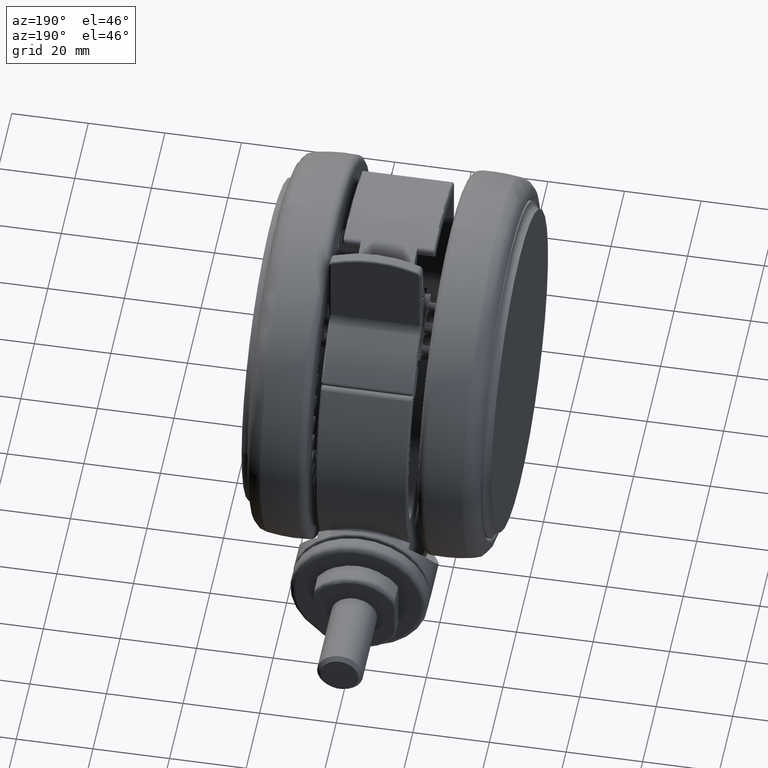
[diagram: clean part render]
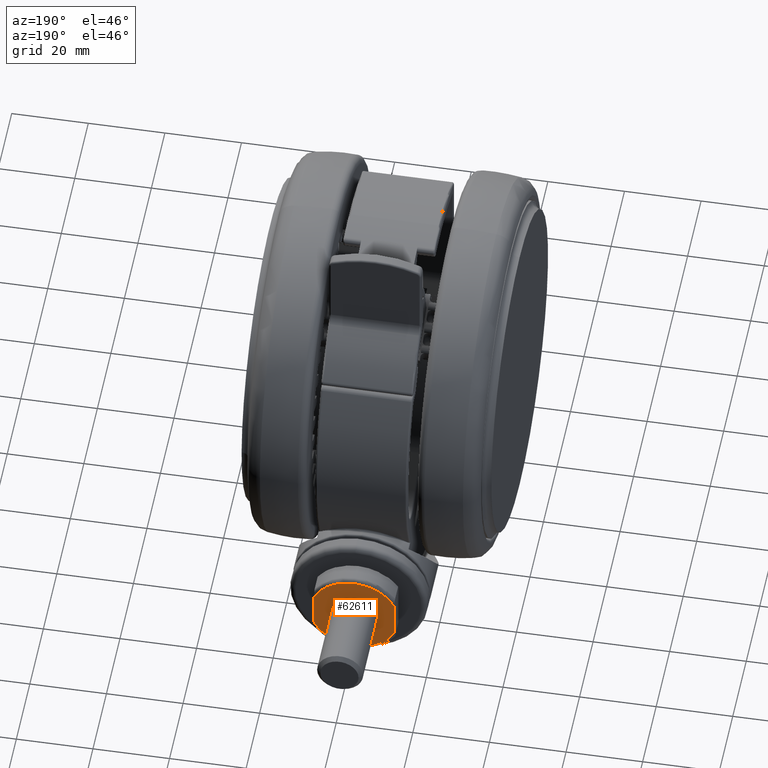
[diagram: same view with one face highlighted and labeled with its STEP entity id]
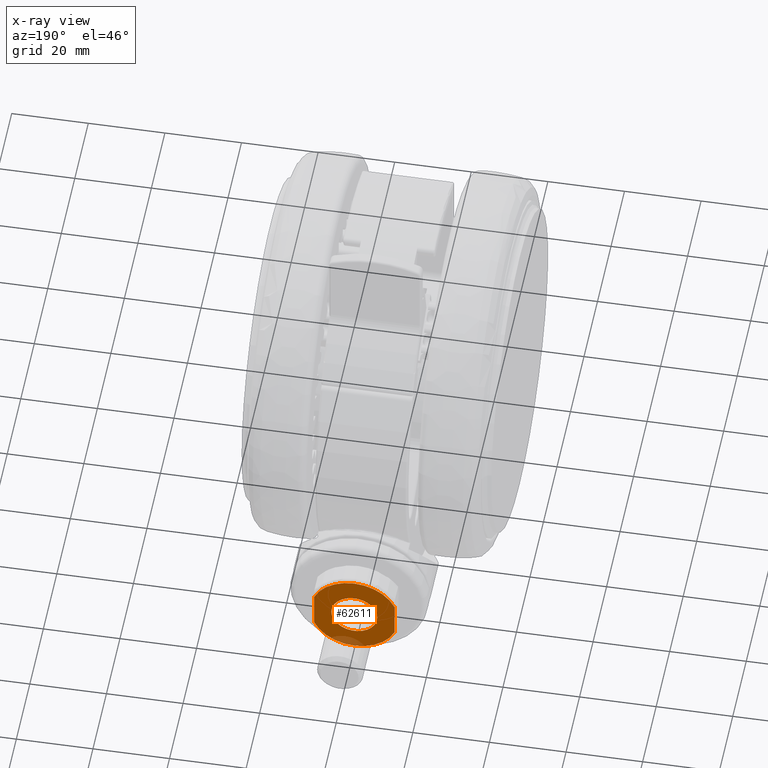
[diagram: x-ray of the same camera — body ghosted, the highlighted face saturated]
A machine part, auxiliary view. The second image highlights one B-rep face of the part: STEP entity #62611.
The next image is the same camera in x-ray: the body ghosted, the highlighted face saturated — about 6% of this face is hidden behind the body in this view.
In plain terms, the highlighted planar face has unit normal (0, -1, -0).
Its self-contained STEP definition (entity closure, byte-faithful):
#335 = EDGE_LOOP ( 'NONE', ( #25829, #18418 ) ) ;
#2395 = CARTESIAN_POINT ( 'NONE',  ( -59.27829912366399200, 36.20849239963333600, -32.59999999999991600 ) ) ;
#2569 = AXIS2_PLACEMENT_3D ( 'NONE', #31333, #18881, #63064 ) ;
#2771 = CARTESIAN_POINT ( 'NONE',  ( -59.18326526279792400, 40.89794530645401200, -22.09999999999991300 ) ) ;
#4718 = EDGE_CURVE ( 'NONE', #26890, #61011, #55676, .T. ) ;
#6466 = CARTESIAN_POINT ( 'NONE',  ( -59.27829912366399200, 36.20849239963333600, -32.59999999999991600 ) ) ;
#8813 = DIRECTION ( 'NONE',  ( 0.0000000000000000000, 0.0000000000000000000, 1.000000000000000000 ) ) ;
#9092 = ORIENTED_EDGE ( 'NONE', *, *, #50541, .T. ) ;
#9246 = ORIENTED_EDGE ( 'NONE', *, *, #35001, .F. ) ;
#9418 = CIRCLE ( 'NONE', #32175, 11.50000000000000000 ) ;
#12492 = PLANE ( 'NONE',  #2569 ) ;
#12803 = DIRECTION ( 'NONE',  ( 0.0000000000000000000, 0.0000000000000000000, 1.000000000000000000 ) ) ;
#14944 = VECTOR ( 'NONE', #71400, 1000.000000000000100 ) ;
#16540 = CARTESIAN_POINT ( 'NONE',  ( -59.18326526279792400, 40.89794530645401200, -43.09999999999991600 ) ) ;
#16957 = DIRECTION ( 'NONE',  ( -0.9997947190500678900, 0.02026128721468445700, -0.0000000000000000000 ) ) ;
#18418 = ORIENTED_EDGE ( 'NONE', *, *, #4718, .T. ) ;
#18834 = EDGE_LOOP ( 'NONE', ( #9246, #40443, #9092, #22997 ) ) ;
#18881 = DIRECTION ( 'NONE',  ( 0.9997947190500678900, -0.02026128721468446100, 0.0000000000000000000 ) ) ;
#19747 = AXIS2_PLACEMENT_3D ( 'NONE', #6466, #50596, #12803 ) ;
#22997 = ORIENTED_EDGE ( 'NONE', *, *, #63758, .T. ) ;
#23817 = CARTESIAN_POINT ( 'NONE',  ( -59.27829912366399200, 36.20849239963333600, -32.59999999999991600 ) ) ;
#25471 = VECTOR ( 'NONE', #48091, 1000.000000000000100 ) ;
#25829 = ORIENTED_EDGE ( 'NONE', *, *, #47920, .T. ) ;
#26890 = VERTEX_POINT ( 'NONE', #54909 ) ;
#27740 = CIRCLE ( 'NONE', #19747, 5.999999999999998200 ) ;
#30127 = DIRECTION ( 'NONE',  ( 0.0000000000000000000, 0.0000000000000000000, 1.000000000000000000 ) ) ;
#31333 = CARTESIAN_POINT ( 'NONE',  ( -59.27829912366399200, 36.20849239963333600, -32.59999999999991600 ) ) ;
#31863 = FACE_BOUND ( 'NONE', #335, .T. ) ;
#32175 = AXIS2_PLACEMENT_3D ( 'NONE', #54770, #16957, #61155 ) ;
#33595 = CARTESIAN_POINT ( 'NONE',  ( -59.27829912366399200, 36.20849239963333600, -22.09999999999991300 ) ) ;
#35001 = EDGE_CURVE ( 'NONE', #78999, #78176, #50481, .T. ) ;
#40443 = ORIENTED_EDGE ( 'NONE', *, *, #60871, .T. ) ;
#41737 = CARTESIAN_POINT ( 'NONE',  ( -59.27829912366399200, 36.20849239963333600, -43.09999999999991600 ) ) ;
#43288 = CARTESIAN_POINT ( 'NONE',  ( -59.37333298453005900, 31.51903949281265600, -43.09999999999991600 ) ) ;
#46590 = DIRECTION ( 'NONE',  ( -0.9997947190500678900, 0.02026128721468445700, -0.0000000000000000000 ) ) ;
#47086 = AXIS2_PLACEMENT_3D ( 'NONE', #2395, #46590, #8813 ) ;
#47920 = EDGE_CURVE ( 'NONE', #61011, #26890, #27740, .T. ) ;
#48091 = DIRECTION ( 'NONE',  ( -0.02026128721468445700, -0.9997947190500677800, 0.0000000000000000000 ) ) ;
#48602 = FACE_OUTER_BOUND ( 'NONE', #18834, .T. ) ;
#50481 = LINE ( 'NONE', #33595, #14944 ) ;
#50541 = EDGE_CURVE ( 'NONE', #66970, #68114, #59070, .T. ) ;
#50596 = DIRECTION ( 'NONE',  ( 0.9997947190500678900, -0.02026128721468445700, 0.0000000000000000000 ) ) ;
#54770 = CARTESIAN_POINT ( 'NONE',  ( -59.27829912366399200, 36.20849239963333600, -32.59999999999991600 ) ) ;
#54909 = CARTESIAN_POINT ( 'NONE',  ( -59.27829912366399200, 36.20849239963333600, -26.59999999999991600 ) ) ;
#55676 = CIRCLE ( 'NONE', #78512, 5.999999999999998200 ) ;
#59070 = LINE ( 'NONE', #41737, #25471 ) ;
#60871 = EDGE_CURVE ( 'NONE', #78999, #66970, #9418, .T. ) ;
#61011 = VERTEX_POINT ( 'NONE', #81428 ) ;
#61155 = DIRECTION ( 'NONE',  ( 0.0000000000000000000, -6.033820786006285700E-016, 1.000000000000000000 ) ) ;
#62611 = ADVANCED_FACE ( 'NONE', ( #31863, #48602 ), #12492, .F. ) ;
#63064 = DIRECTION ( 'NONE',  ( 0.0000000000000000000, 0.0000000000000000000, 1.000000000000000000 ) ) ;
#63758 = EDGE_CURVE ( 'NONE', #68114, #78176, #71802, .T. ) ;
#66970 = VERTEX_POINT ( 'NONE', #16540 ) ;
#67923 = DIRECTION ( 'NONE',  ( 0.9997947190500678900, -0.02026128721468445700, 0.0000000000000000000 ) ) ;
#68114 = VERTEX_POINT ( 'NONE', #43288 ) ;
#71400 = DIRECTION ( 'NONE',  ( -0.02026128721468445700, -0.9997947190500677800, 0.0000000000000000000 ) ) ;
#71802 = CIRCLE ( 'NONE', #47086, 11.50000000000000000 ) ;
#76874 = CARTESIAN_POINT ( 'NONE',  ( -59.37333298453005900, 31.51903949281265600, -22.09999999999991300 ) ) ;
#78176 = VERTEX_POINT ( 'NONE', #76874 ) ;
#78512 = AXIS2_PLACEMENT_3D ( 'NONE', #23817, #67923, #30127 ) ;
#78999 = VERTEX_POINT ( 'NONE', #2771 ) ;
#81428 = CARTESIAN_POINT ( 'NONE',  ( -59.27829912366399200, 36.20849239963333600, -38.59999999999990900 ) ) ;